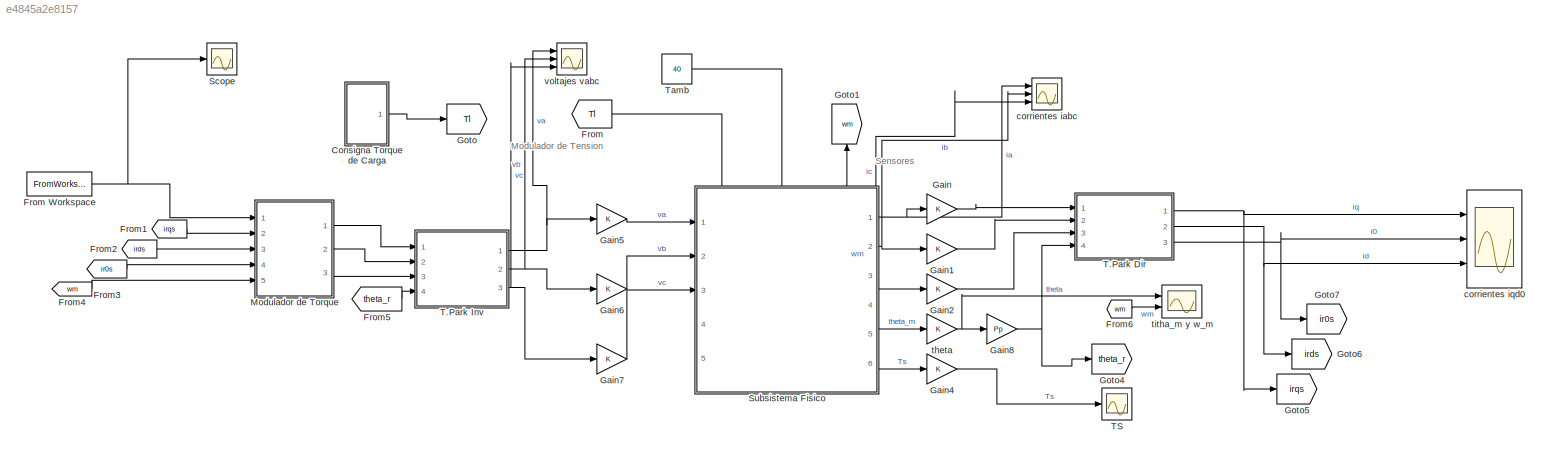
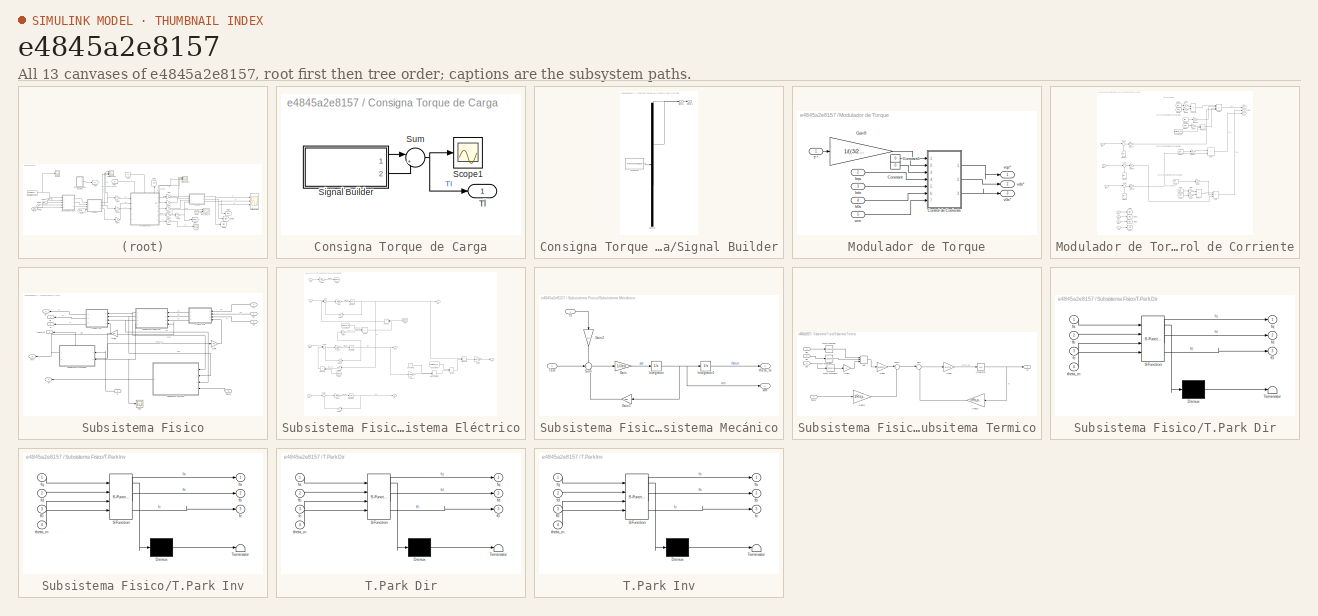
[diagram: thumbnail index - all 13 canvases of the model, root first then tree order]
MODEL slx_e4845a2e8157
KIND model
CONFIG AbsTol = auto
CONFIG EnableMultiTasking = off
CONFIG FixedStep = auto
CONFIG MaxStep = auto
CONFIG MinStep = auto
CONFIG RelTol = 1e-3
CONFIG SampleTimeConstraint = Unconstrained
CONFIG SolverName = VariableStepAuto
CONFIG StartTime = 0.0
CONFIG StopTime = 1.3
BLOCK [SubSystem] Consigna Torque de Carga
  Ports = [0, 1]
  RequestExecContextInheritance = off
BLOCK [Scope] Consigna Torque de Carga/Scope1
  Floating = off
  NumInputPorts = 1
  Ports = [1]
  ScopeSpecificationString = Simulink.scopes.TimeScopeBlockCfg('CurrentConfiguration', extmgr.ConfigurationSet(extmgr.Configuration('Core','General UI',true),extmgr.Configuration('Core','Source UI',true),extmgr.Configuration('Sources','WiredSimulink',true,'DataLoggingVariableName','ScopeData2'),extmgr.Configuration('Visuals','Time Domain',true,'SerializedDisplays',{struct('MinYLimReal','-7.85','MaxYLimReal','7.85','YLabelReal...<+1373ch>
BLOCK [SubSystem] Consigna Torque de Carga/Signal Builder
  ClipboardFcn = sigbuilder_block('clipboard');
  CloseFcn = sigbuilder_block('close');
  ContinueFcn = sigbuilder_block('continue');
  CopyFcn = sigbuilder_block('copy');
  DeleteFcn = sigbuilder_block('delete');
  LoadFcn = sigbuilder_block('load');
  MaskHideContents = on
  ModelCloseFcn = sigbuilder_block('modelClose');
  NameChangeFcn = sigbuilder_block('namechange');
  OpenFcn = sigbuilder_block('open',[388.2 64.2 550.8 400.2 ]);
  PauseFcn = sigbuilder_block('pause');
  Ports = [0, 2]
  PreSaveFcn = sigbuilder_block('preSave');
  RequestExecContextInheritance = off
  StartFcn = sigbuilder_block('start');
  StopFcn = sigbuilder_block('stop');
  Tag = STV Subsys
BLOCK [Demux] Consigna Torque de Carga/Signal Builder/Demux
  DisplayOption = none
  Outputs = 2
  Ports = [1, 2]
  Tag = STV Demux
BLOCK [FromWorkspace] Consigna Torque de Carga/Signal Builder/FromWs
  Tag = STV FromWs
  VariableName = tuvar
BLOCK [Outport] Consigna Torque de Carga/Signal Builder/Signal 1
  Tag = STV Outport
BLOCK [Outport] Consigna Torque de Carga/Signal Builder/Signal 2
  Port = 2
  Tag = STV Outport
BLOCK [Sum] Consigna Torque de Carga/Sum
  Inputs = |++
  Ports = [2, 1]
BLOCK [Outport] Consigna Torque de Carga/Tl
BLOCK [From] From
  GotoTag = Tl
BLOCK [FromWorkspace] From Workspace
  VariableName = out.Tem
BLOCK [From] From1
  GotoTag = irqs
BLOCK [From] From2
  GotoTag = irds
BLOCK [From] From3
  GotoTag = ir0s
BLOCK [From] From4
  GotoTag = wm
BLOCK [From] From5
  GotoTag = theta_r
BLOCK [From] From6
  GotoTag = wm
BLOCK [Gain] Gain
BLOCK [Gain] Gain1
BLOCK [Gain] Gain2
BLOCK [Gain] Gain4
BLOCK [Gain] Gain5
BLOCK [Gain] Gain6
BLOCK [Gain] Gain7
BLOCK [Gain] Gain8
  Gain = Pp
BLOCK [Goto] Goto
  GotoTag = Tl
BLOCK [Goto] Goto1
  GotoTag = wm
  NameLocation = right
BLOCK [Goto] Goto4
  GotoTag = theta_r
BLOCK [Goto] Goto5
  GotoTag = irqs
BLOCK [Goto] Goto6
  GotoTag = irds
BLOCK [Goto] Goto7
  GotoTag = ir0s
BLOCK [SubSystem] Modulador de Torque
  Ports = [5, 3]
  RequestExecContextInheritance = off
BLOCK [Constant] Modulador de Torque/Constant
  Value = 0
BLOCK [Constant] Modulador de Torque/Constant1
  Value = 0
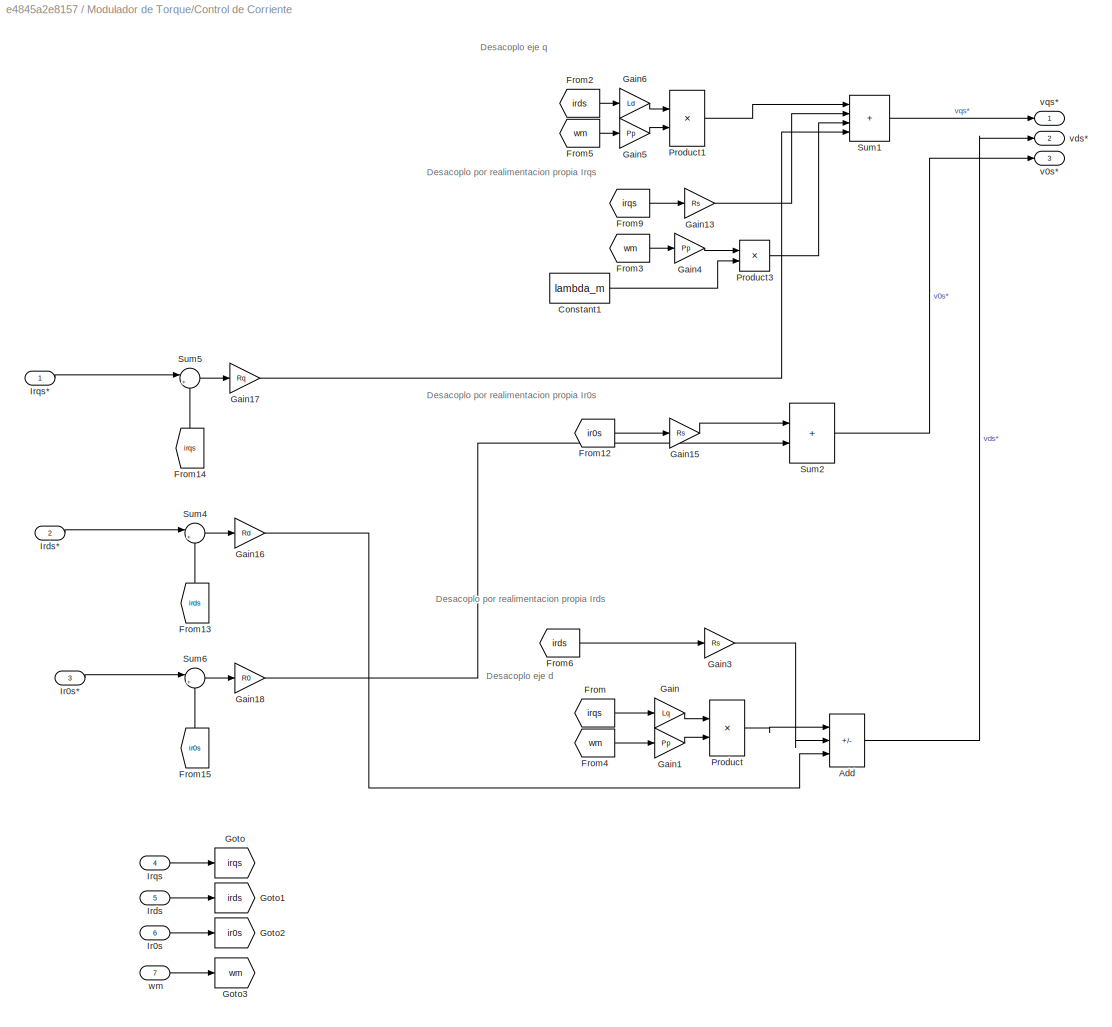
BLOCK [SubSystem] Modulador de Torque/Control de Corriente
  Ports = [7, 3]
  RequestExecContextInheritance = off
BLOCK [Sum] Modulador de Torque/Control de Corriente/Add
  IconShape = rectangular
  Inputs = |-++
  NameLocation = top
  Ports = [3, 1]
BLOCK [Constant] Modulador de Torque/Control de Corriente/Constant1
  Value = lambda_m
BLOCK [From] Modulador de Torque/Control de Corriente/From
  GotoTag = irqs
BLOCK [From] Modulador de Torque/Control de Corriente/From12
  GotoTag = ir0s
BLOCK [From] Modulador de Torque/Control de Corriente/From13
  GotoTag = irds
  NameLocation = right
BLOCK [From] Modulador de Torque/Control de Corriente/From14
  GotoTag = irqs
  NameLocation = right
BLOCK [From] Modulador de Torque/Control de Corriente/From15
  GotoTag = ir0s
  NameLocation = right
BLOCK [From] Modulador de Torque/Control de Corriente/From2
  GotoTag = irds
  NameLocation = top
BLOCK [From] Modulador de Torque/Control de Corriente/From3
  GotoTag = wm
  NameLocation = top
BLOCK [From] Modulador de Torque/Control de Corriente/From4
  GotoTag = wm
  NameLocation = top
BLOCK [From] Modulador de Torque/Control de Corriente/From5
  GotoTag = wm
  NameLocation = top
BLOCK [From] Modulador de Torque/Control de Corriente/From6
  GotoTag = irds
BLOCK [From] Modulador de Torque/Control de Corriente/From9
  GotoTag = irqs
BLOCK [Gain] Modulador de Torque/Control de Corriente/Gain
  Gain = Lq
BLOCK [Gain] Modulador de Torque/Control de Corriente/Gain1
  Gain = Pp
BLOCK [Gain] Modulador de Torque/Control de Corriente/Gain13
  Gain = Rs
BLOCK [Gain] Modulador de Torque/Control de Corriente/Gain15
  Gain = Rs
BLOCK [Gain] Modulador de Torque/Control de Corriente/Gain16
  Gain = Rd
BLOCK [Gain] Modulador de Torque/Control de Corriente/Gain17
  Gain = Rq
BLOCK [Gain] Modulador de Torque/Control de Corriente/Gain18
  Gain = R0
BLOCK [Gain] Modulador de Torque/Control de Corriente/Gain3
  Gain = Rs
BLOCK [Gain] Modulador de Torque/Control de Corriente/Gain4
  Gain = Pp
BLOCK [Gain] Modulador de Torque/Control de Corriente/Gain5
  Gain = Pp
BLOCK [Gain] Modulador de Torque/Control de Corriente/Gain6
  Gain = Ld
BLOCK [Goto] Modulador de Torque/Control de Corriente/Goto
  GotoTag = irqs
BLOCK [Goto] Modulador de Torque/Control de Corriente/Goto1
  GotoTag = irds
BLOCK [Goto] Modulador de Torque/Control de Corriente/Goto2
  GotoTag = ir0s
BLOCK [Goto] Modulador de Torque/Control de Corriente/Goto3
  GotoTag = wm
BLOCK [Inport] Modulador de Torque/Control de Corriente/Ir0s
  Port = 6
BLOCK [Inport] Modulador de Torque/Control de Corriente/Ir0s*
  Port = 3
BLOCK [Inport] Modulador de Torque/Control de Corriente/Irds
  Port = 5
BLOCK [Inport] Modulador de Torque/Control de Corriente/Irds*
  Port = 2
BLOCK [Inport] Modulador de Torque/Control de Corriente/Irqs
  Port = 4
BLOCK [Inport] Modulador de Torque/Control de Corriente/Irqs*
BLOCK [Product] Modulador de Torque/Control de Corriente/Product
  NameLocation = top
  Ports = [2, 1]
BLOCK [Product] Modulador de Torque/Control de Corriente/Product1
  NameLocation = top
  Ports = [2, 1]
BLOCK [Product] Modulador de Torque/Control de Corriente/Product3
  NameLocation = top
  Ports = [2, 1]
BLOCK [Sum] Modulador de Torque/Control de Corriente/Sum1
  IconShape = rectangular
  Inputs = |++++
  Ports = [4, 1]
BLOCK [Sum] Modulador de Torque/Control de Corriente/Sum2
  IconShape = rectangular
  Inputs = |++
  Ports = [2, 1]
BLOCK [Sum] Modulador de Torque/Control de Corriente/Sum4
  Inputs = |+-
  Ports = [2, 1]
BLOCK [Sum] Modulador de Torque/Control de Corriente/Sum5
  Inputs = |+-
  Ports = [2, 1]
BLOCK [Sum] Modulador de Torque/Control de Corriente/Sum6
  Inputs = |+-
  Ports = [2, 1]
BLOCK [Outport] Modulador de Torque/Control de Corriente/v0s*
  Port = 3
BLOCK [Outport] Modulador de Torque/Control de Corriente/vds*
  Port = 2
BLOCK [Outport] Modulador de Torque/Control de Corriente/vqs*
BLOCK [Inport] Modulador de Torque/Control de Corriente/wm
  Port = 7
BLOCK [Gain] Modulador de Torque/Gain9
  Gain = 1/((3/2)*Pp*lambda_m)
BLOCK [Inport] Modulador de Torque/Ir0s
  Port = 4
BLOCK [Inport] Modulador de Torque/Irds
  Port = 3
BLOCK [Inport] Modulador de Torque/Irqs
  Port = 2
BLOCK [Inport] Modulador de Torque/T*
BLOCK [Outport] Modulador de Torque/v0s*
  Port = 3
BLOCK [Outport] Modulador de Torque/vds*
  Port = 2
BLOCK [Outport] Modulador de Torque/vqs*
BLOCK [Inport] Modulador de Torque/wm
  Port = 5
BLOCK [Scope] Scope
  Floating = off
  NumInputPorts = 1
  Ports = [1]
  ScopeSpecificationString = Simulink.scopes.TimeScopeBlockCfg('CurrentConfiguration', extmgr.ConfigurationSet(extmgr.Configuration('Core','General UI',true),extmgr.Configuration('Core','Source UI',true),extmgr.Configuration('Sources','WiredSimulink',true,'DataLoggingVariableName','ScopeData1'),extmgr.Configuration('Visuals','Time Domain',true,'SerializedDisplays',{struct('MinYLimReal','-1.39206','MaxYLimReal','1.38011','YLab...<+1373ch>
BLOCK [SubSystem] Subsistema Fisico
  PortSchema = {"entries":[{"content":{"sides":[{"content":{"connectorIds":["In1","In2","In3"]},"type":"ConnectorPlacement.EquallySpacedRectSide","uuid":"428e53fe-c6d6-4999-95eb-db171c1d7752"},{"content":{"connectorIds":["Out1","Out2","Out3","Out4","Out5"],"side":"RIGHT"},"type":"ConnectorPlacement.EquallySpacedRectSide","uuid":"d3984cce-d898-4b9d-ab92-7967eebad5db"},{"content":{"connectorIds":["In4","In5","Out6...<+586ch>
  Ports = [5, 6]
  RequestExecContextInheritance = off
BLOCK [Gain] Subsistema Fisico/Gain
  Gain = Pp
BLOCK [Gain] Subsistema Fisico/Gain1
  Gain = Pp
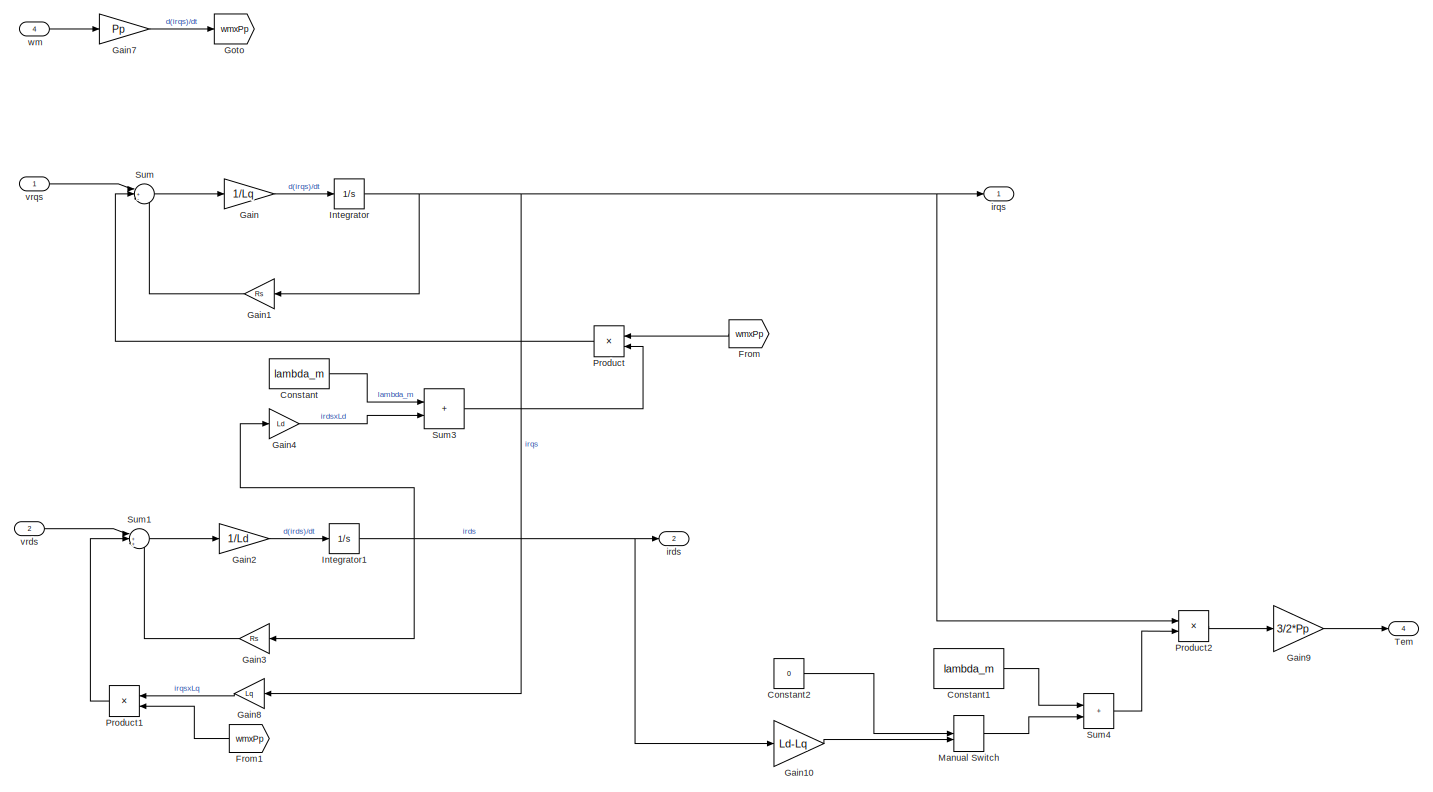
[diagram: Subsistema Fisico/Subsistema Eléctrico - part 1/2, most of the canvas]
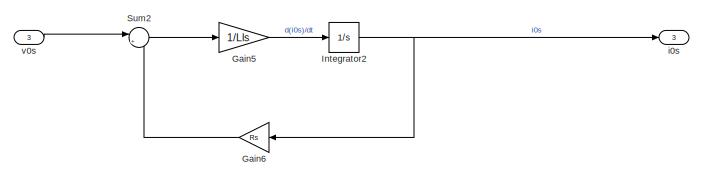
[diagram: Subsistema Fisico/Subsistema Eléctrico - part 2/2, bottom left region]
BLOCK [SubSystem] Subsistema Fisico/Subsistema Eléctrico
  Ports = [4, 4]
  RequestExecContextInheritance = off
BLOCK [Constant] Subsistema Fisico/Subsistema Eléctrico/Constant
  Value = lambda_m
BLOCK [Constant] Subsistema Fisico/Subsistema Eléctrico/Constant1
  Value = lambda_m
BLOCK [Constant] Subsistema Fisico/Subsistema Eléctrico/Constant2
  Value = 0
BLOCK [From] Subsistema Fisico/Subsistema Eléctrico/From
  GotoTag = wmxPp
BLOCK [From] Subsistema Fisico/Subsistema Eléctrico/From1
  GotoTag = wmxPp
BLOCK [Gain] Subsistema Fisico/Subsistema Eléctrico/Gain
  Gain = 1/Lq
BLOCK [Gain] Subsistema Fisico/Subsistema Eléctrico/Gain1
  Gain = Rs
BLOCK [Gain] Subsistema Fisico/Subsistema Eléctrico/Gain10
  Gain = Ld-Lq
BLOCK [Gain] Subsistema Fisico/Subsistema Eléctrico/Gain2
  Gain = 1/Ld
BLOCK [Gain] Subsistema Fisico/Subsistema Eléctrico/Gain3
  Gain = Rs
BLOCK [Gain] Subsistema Fisico/Subsistema Eléctrico/Gain4
  Gain = Ld
BLOCK [Gain] Subsistema Fisico/Subsistema Eléctrico/Gain5
  Gain = 1/Lls
BLOCK [Gain] Subsistema Fisico/Subsistema Eléctrico/Gain6
  Gain = Rs
BLOCK [Gain] Subsistema Fisico/Subsistema Eléctrico/Gain7
  Gain = Pp
BLOCK [Gain] Subsistema Fisico/Subsistema Eléctrico/Gain8
  Gain = Lq
BLOCK [Gain] Subsistema Fisico/Subsistema Eléctrico/Gain9
  Gain = 3/2*Pp
BLOCK [Goto] Subsistema Fisico/Subsistema Eléctrico/Goto
  GotoTag = wmxPp
BLOCK [Integrator] Subsistema Fisico/Subsistema Eléctrico/Integrator
  Ports = [1, 1]
BLOCK [Integrator] Subsistema Fisico/Subsistema Eléctrico/Integrator1
  Ports = [1, 1]
BLOCK [Integrator] Subsistema Fisico/Subsistema Eléctrico/Integrator2
  Ports = [1, 1]
BLOCK [ManualSwitch] Subsistema Fisico/Subsistema Eléctrico/Manual Switch
BLOCK [Product] Subsistema Fisico/Subsistema Eléctrico/Product
  Ports = [2, 1]
BLOCK [Product] Subsistema Fisico/Subsistema Eléctrico/Product1
  Ports = [2, 1]
BLOCK [Product] Subsistema Fisico/Subsistema Eléctrico/Product2
  Ports = [2, 1]
BLOCK [Sum] Subsistema Fisico/Subsistema Eléctrico/Sum
  Inputs = |+--
  Ports = [3, 1]
BLOCK [Sum] Subsistema Fisico/Subsistema Eléctrico/Sum1
  Inputs = |++-
  Ports = [3, 1]
BLOCK [Sum] Subsistema Fisico/Subsistema Eléctrico/Sum2
  Inputs = |+-
  Ports = [2, 1]
BLOCK [Sum] Subsistema Fisico/Subsistema Eléctrico/Sum3
  IconShape = rectangular
  Ports = [2, 1]
BLOCK [Sum] Subsistema Fisico/Subsistema Eléctrico/Sum4
  IconShape = rectangular
  Ports = [2, 1]
BLOCK [Outport] Subsistema Fisico/Subsistema Eléctrico/Tem
  Port = 4
BLOCK [Outport] Subsistema Fisico/Subsistema Eléctrico/i0s
  Port = 3
BLOCK [Outport] Subsistema Fisico/Subsistema Eléctrico/irds
  Port = 2
BLOCK [Outport] Subsistema Fisico/Subsistema Eléctrico/irqs
BLOCK [Inport] Subsistema Fisico/Subsistema Eléctrico/v0s
  Port = 3
BLOCK [Inport] Subsistema Fisico/Subsistema Eléctrico/vrds
  Port = 2
BLOCK [Inport] Subsistema Fisico/Subsistema Eléctrico/vrqs
BLOCK [Inport] Subsistema Fisico/Subsistema Eléctrico/wm
  Port = 4
BLOCK [SubSystem] Subsistema Fisico/Subsistema Mecánico
  PortSchema = {"entries":[{"content":{"sides":[{"content":{"connectorIds":["In1","In2"]},"type":"ConnectorPlacement.EquallySpacedRectSide","uuid":"ee0e19e9-1195-452b-ab3d-8be3dd040414"},{"content":{"connectorIds":["Out1"],"side":"RIGHT"},"type":"ConnectorPlacement.EquallySpacedRectSide","uuid":"524e54e6-4967-4b42-ae12-58774e9397a0"},{"content":{"connectorIds":["Out2"],"side":"TOP"},"type":"ConnectorPlacement.Eq...<+396ch>
  Ports = [2, 2]
  RequestExecContextInheritance = off
BLOCK [Gain] Subsistema Fisico/Subsistema Mecánico/Gain
  Gain = 1/Jeq
BLOCK [Gain] Subsistema Fisico/Subsistema Mecánico/Gain1
  Gain = beq
BLOCK [Gain] Subsistema Fisico/Subsistema Mecánico/Gain2
  Gain = 1/r
  NameLocation = left
BLOCK [Integrator] Subsistema Fisico/Subsistema Mecánico/Integrator
  Ports = [1, 1]
BLOCK [Integrator] Subsistema Fisico/Subsistema Mecánico/Integrator1
  Ports = [1, 1]
BLOCK [Sum] Subsistema Fisico/Subsistema Mecánico/Sum
  Inputs = -+-
  Ports = [3, 1]
BLOCK [Inport] Subsistema Fisico/Subsistema Mecánico/Tem
  Port = 2
BLOCK [Inport] Subsistema Fisico/Subsistema Mecánico/Tl
BLOCK [Outport] Subsistema Fisico/Subsistema Mecánico/theta_m
  Port = 2
BLOCK [Outport] Subsistema Fisico/Subsistema Mecánico/wm
BLOCK [SubSystem] Subsistema Fisico/Subsitema Termico
  Ports = [4, 1]
  RequestExecContextInheritance = off
BLOCK [Sum] Subsistema Fisico/Subsitema Termico/Add
  IconShape = rectangular
  Inputs = +++
  Ports = [3, 1]
BLOCK [Gain] Subsistema Fisico/Subsitema Termico/Gain10
  Gain = 1/Rts_amb
BLOCK [Gain] Subsistema Fisico/Subsitema Termico/Gain11
  Gain = 1/Rts_amb
BLOCK [Gain] Subsistema Fisico/Subsitema Termico/Gain7
  Gain = 2
BLOCK [Gain] Subsistema Fisico/Subsitema Termico/Gain8
  Gain = 3/2*Rs
BLOCK [Gain] Subsistema Fisico/Subsitema Termico/Gain9
  Gain = 1/Cts
BLOCK [Integrator] Subsistema Fisico/Subsitema Termico/Integrator
  InitialCondition = 40
  Ports = [1, 1]
BLOCK [Math] Subsistema Fisico/Subsitema Termico/Math Function
  Operator = square
  Ports = [1, 1]
BLOCK [Math] Subsistema Fisico/Subsitema Termico/Math Function1
  Operator = square
  Ports = [1, 1]
BLOCK [Math] Subsistema Fisico/Subsitema Termico/Math Function2
  Operator = square
  Ports = [1, 1]
BLOCK [Sum] Subsistema Fisico/Subsitema Termico/Sum
  Inputs = |+-
  Ports = [2, 1]
BLOCK [Sum] Subsistema Fisico/Subsitema Termico/Sum1
  Inputs = |++
  Ports = [2, 1]
BLOCK [Inport] Subsistema Fisico/Subsitema Termico/Tamb
  Port = 4
BLOCK [Outport] Subsistema Fisico/Subsitema Termico/Ts
BLOCK [Inport] Subsistema Fisico/Subsitema Termico/i0s
  Port = 3
BLOCK [Inport] Subsistema Fisico/Subsitema Termico/ids
  Port = 2
BLOCK [Inport] Subsistema Fisico/Subsitema Termico/iqs
BLOCK [SubSystem] Subsistema Fisico/T.Park Dir
  ErrorFcn = Stateflow.Translate.translate
  PermitHierarchicalResolution = ExplicitOnly
  Ports = [4, 3]
  RequestExecContextInheritance = off
  SFBlockType = MATLAB Function
  TreatAsAtomicUnit = on
BLOCK [Demux] Subsistema Fisico/T.Park Dir/ Demux 
  Outputs = 1
  Ports = [1, 1]
BLOCK [S-Function] Subsistema Fisico/T.Park Dir/ SFunction 
  EnableBusSupport = on
  FunctionName = sf_sfun
  PortCounts = [4 4]
  Ports = [4, 4]
  SFcnIsStateOwnerBlock = off
  SFunctionDeploymentMode = off
  Tag = Stateflow S-Function 1
BLOCK [Terminator] Subsistema Fisico/T.Park Dir/ Terminator 
BLOCK [Outport] Subsistema Fisico/T.Park Dir/f0
  Port = 3
BLOCK [Inport] Subsistema Fisico/T.Park Dir/fa
BLOCK [Inport] Subsistema Fisico/T.Park Dir/fb
  Port = 2
BLOCK [Inport] Subsistema Fisico/T.Park Dir/fc
  Port = 3
BLOCK [Outport] Subsistema Fisico/T.Park Dir/fd
  Port = 2
BLOCK [Outport] Subsistema Fisico/T.Park Dir/fq
BLOCK [Inport] Subsistema Fisico/T.Park Dir/theta_m
  Port = 4
BLOCK [SubSystem] Subsistema Fisico/T.Park Inv
  ErrorFcn = Stateflow.Translate.translate
  PermitHierarchicalResolution = ExplicitOnly
  Ports = [4, 3]
  RequestExecContextInheritance = off
  SFBlockType = MATLAB Function
  TreatAsAtomicUnit = on
BLOCK [Demux] Subsistema Fisico/T.Park Inv/ Demux 
  Outputs = 1
  Ports = [1, 1]
BLOCK [S-Function] Subsistema Fisico/T.Park Inv/ SFunction 
  EnableBusSupport = on
  FunctionName = sf_sfun
  PortCounts = [4 4]
  Ports = [4, 4]
  SFcnIsStateOwnerBlock = off
  SFunctionDeploymentMode = off
  Tag = Stateflow S-Function 2
BLOCK [Terminator] Subsistema Fisico/T.Park Inv/ Terminator 
BLOCK [Inport] Subsistema Fisico/T.Park Inv/f0
  Port = 3
BLOCK [Outport] Subsistema Fisico/T.Park Inv/fa
BLOCK [Outport] Subsistema Fisico/T.Park Inv/fb
  Port = 2
BLOCK [Outport] Subsistema Fisico/T.Park Inv/fc
  Port = 3
BLOCK [Inport] Subsistema Fisico/T.Park Inv/fd
  Port = 2
BLOCK [Inport] Subsistema Fisico/T.Park Inv/fq
BLOCK [Inport] Subsistema Fisico/T.Park Inv/theta_m
  Port = 4
BLOCK [Inport] Subsistema Fisico/Tamb
  Port = 5
BLOCK [Scope] Subsistema Fisico/Tem
  Floating = off
  NumInputPorts = 1
  Ports = [1]
  ScopeSpecificationString = Simulink.scopes.TimeScopeBlockCfg('CurrentConfiguration', extmgr.ConfigurationSet(extmgr.Configuration('Core','General UI',true),extmgr.Configuration('Core','Source UI',true),extmgr.Configuration('Sources','WiredSimulink',true,'DataLoggingVariableName','ScopeData3'),extmgr.Configuration('Visuals','Time Domain',true,'SerializedDisplays',{struct('MinYLimReal','-1.29318','MaxYLimReal','1.28192','YLab...<+1410ch>
BLOCK [Inport] Subsistema Fisico/Tl
  Port = 4
BLOCK [Outport] Subsistema Fisico/Ts
  Port = 5
BLOCK [Outport] Subsistema Fisico/ia
BLOCK [Outport] Subsistema Fisico/ib
  Port = 2
BLOCK [Outport] Subsistema Fisico/ic
  Port = 3
BLOCK [Outport] Subsistema Fisico/theta_m
  Port = 4
BLOCK [Inport] Subsistema Fisico/va
BLOCK [Inport] Subsistema Fisico/vb
  Port = 2
BLOCK [Inport] Subsistema Fisico/vc
  Port = 3
BLOCK [Outport] Subsistema Fisico/wm
  Port = 6
BLOCK [SubSystem] T.Park Dir
  ErrorFcn = Stateflow.Translate.translate
  PermitHierarchicalResolution = ExplicitOnly
  Ports = [4, 3]
  RequestExecContextInheritance = off
  SFBlockType = MATLAB Function
  TreatAsAtomicUnit = on
BLOCK [Demux] T.Park Dir/ Demux 
  Outputs = 1
  Ports = [1, 1]
BLOCK [S-Function] T.Park Dir/ SFunction 
  EnableBusSupport = on
  FunctionName = sf_sfun
  PortCounts = [4 4]
  Ports = [4, 4]
  SFcnIsStateOwnerBlock = off
  SFunctionDeploymentMode = off
  Tag = Stateflow S-Function 3
BLOCK [Terminator] T.Park Dir/ Terminator 
BLOCK [Outport] T.Park Dir/f0
  Port = 3
BLOCK [Inport] T.Park Dir/fa
BLOCK [Inport] T.Park Dir/fb
  Port = 2
BLOCK [Inport] T.Park Dir/fc
  Port = 3
BLOCK [Outport] T.Park Dir/fd
  Port = 2
BLOCK [Outport] T.Park Dir/fq
BLOCK [Inport] T.Park Dir/theta_m
  Port = 4
BLOCK [SubSystem] T.Park Inv
  ErrorFcn = Stateflow.Translate.translate
  PermitHierarchicalResolution = ExplicitOnly
  Ports = [4, 3]
  RequestExecContextInheritance = off
  SFBlockType = MATLAB Function
  TreatAsAtomicUnit = on
BLOCK [Demux] T.Park Inv/ Demux 
  Outputs = 1
  Ports = [1, 1]
BLOCK [S-Function] T.Park Inv/ SFunction 
  EnableBusSupport = on
  FunctionName = sf_sfun
  PortCounts = [4 4]
  Ports = [4, 4]
  SFcnIsStateOwnerBlock = off
  SFunctionDeploymentMode = off
  Tag = Stateflow S-Function 4
BLOCK [Terminator] T.Park Inv/ Terminator 
BLOCK [Inport] T.Park Inv/f0
  Port = 3
BLOCK [Outport] T.Park Inv/fa
BLOCK [Outport] T.Park Inv/fb
  Port = 2
BLOCK [Outport] T.Park Inv/fc
  Port = 3
BLOCK [Inport] T.Park Inv/fd
  Port = 2
BLOCK [Inport] T.Park Inv/fq
BLOCK [Inport] T.Park Inv/theta_m
  Port = 4
BLOCK [Scope] TS
  Floating = off
  NumInputPorts = 1
  Ports = [1]
  ScopeSpecificationString = Simulink.scopes.TimeScopeBlockCfg('CurrentConfiguration', extmgr.ConfigurationSet(extmgr.Configuration('Core','General UI',true),extmgr.Configuration('Core','Source UI',true),extmgr.Configuration('Sources','WiredSimulink',true,'DataLoggingVariableName','ScopeData1'),extmgr.Configuration('Visuals','Time Domain',true,'SerializedDisplays',{struct('MinYLimReal','39.83849','MaxYLimReal','41.45356','YLa...<+1367ch>
BLOCK [Constant] Tamb
  Value = 40
BLOCK [Scope] corrientes  iabc
  Floating = off
  NumInputPorts = 3
  Ports = [3]
  ScopeSpecificationString = Simulink.scopes.TimeScopeBlockCfg('CurrentConfiguration', extmgr.ConfigurationSet(extmgr.Configuration('Core','General UI',true),extmgr.Configuration('Core','Source UI',true),extmgr.Configuration('Sources','WiredSimulink',true,'DataLoggingVariableName','ScopeData2'),extmgr.Configuration('Visuals','Time Domain',true,'SerializedDisplays',{struct('MinYLimReal','-15.21092','MaxYLimReal','18.18939','YL...<+1495ch>
BLOCK [Scope] corrientes iqd0
  Floating = off
  NumInputPorts = 3
  Ports = [3]
  ScopeSpecificationString = Simulink.scopes.TimeScopeBlockCfg('CurrentConfiguration', extmgr.ConfigurationSet(extmgr.Configuration('Core','General UI',true,'FigureColor',[1 1 1],'DisplayFullSourceName',true),extmgr.Configuration('Core','Source UI',true),extmgr.Configuration('Sources','WiredSimulink',true,'DataLoggingVariableName','ScopeData3'),extmgr.Configuration('Visuals','Time Domain',true,'SerializedDisplays',{struct('Mi...<+2858ch>
BLOCK [Gain] theta
BLOCK [Scope] titha_m y w_m
  Floating = off
  NumInputPorts = 2
  Ports = [2]
  ScopeSpecificationString = Simulink.scopes.TimeScopeBlockCfg('CurrentConfiguration', extmgr.ConfigurationSet(extmgr.Configuration('Core','General UI',true),extmgr.Configuration('Core','Source UI',true),extmgr.Configuration('Sources','WiredSimulink',true,'DataLoggingVariableName','ScopeData4'),extmgr.Configuration('Visuals','Time Domain',true,'SerializedDisplays',{struct('MinYLimReal','-42.11029','MaxYLimReal','378.99261','Y...<+2036ch>
BLOCK [Scope] voltajes vabc
  Floating = off
  NumInputPorts = 3
  Ports = [3]
  ScopeSpecificationString = Simulink.scopes.TimeScopeBlockCfg('CurrentConfiguration', extmgr.ConfigurationSet(extmgr.Configuration('Core','General UI',true),extmgr.Configuration('Core','Source UI',true),extmgr.Configuration('Sources','WiredSimulink',true,'DataLoggingVariableName','ScopeData5'),extmgr.Configuration('Visuals','Time Domain',true,'SerializedDisplays',{struct('MinYLimReal','-55.16368','MaxYLimReal','57.28497','YL...<+1495ch>
ANNOTATION (root): Modulador de Tension
ANNOTATION (root): Sensores
ANNOTATION Modulador de Torque/Control de Corriente: Desacoplo eje d
ANNOTATION Modulador de Torque/Control de Corriente: Desacoplo eje q
ANNOTATION Modulador de Torque/Control de Corriente: Desacoplo por realimentacion propia Ir0s
ANNOTATION Modulador de Torque/Control de Corriente: Desacoplo por realimentacion propia Irds
ANNOTATION Modulador de Torque/Control de Corriente: Desacoplo por realimentacion propia Irqs
LINE Consigna Torque de Carga/Signal Builder:1 -> Consigna Torque de Carga/Sum:1
LINE Consigna Torque de Carga/Signal Builder:2 -> Consigna Torque de Carga/Sum:2
NET Consigna Torque de Carga/Sum:1 -> Consigna Torque de Carga/Scope1:1, Consigna Torque de Carga/Tl:1
LINE Consigna Torque de Carga:1 -> Goto:1
NET From Workspace:1 -> Modulador de Torque:1, Scope:1
LINE From1:1 -> Modulador de Torque:2
LINE From2:1 -> Modulador de Torque:3
LINE From3:1 -> Modulador de Torque:4
LINE From4:1 -> Modulador de Torque:5
LINE From5:1 -> T.Park Inv:4
LINE From6:1 -> titha_m y w_m:2
LINE From:1 -> Subsistema Fisico:4
LINE Gain1:1 -> T.Park Dir:2
LINE Gain2:1 -> T.Park Dir:3
LINE Gain4:1 -> TS:1
LINE Gain5:1 -> Subsistema Fisico:1
LINE Gain6:1 -> Subsistema Fisico:2
LINE Gain7:1 -> Subsistema Fisico:3
NET Gain8:1 -> Goto4:1, T.Park Dir:4
LINE Gain:1 -> T.Park Dir:1
LINE Modulador de Torque/Constant1:1 -> Modulador de Torque/Control de Corriente:2
LINE Modulador de Torque/Constant:1 -> Modulador de Torque/Control de Corriente:3
LINE Modulador de Torque/Control de Corriente/Add:1 -> Modulador de Torque/Control de Corriente/vds*:1
LINE Modulador de Torque/Control de Corriente/Constant1:1 -> Modulador de Torque/Control de Corriente/Product3:2
LINE Modulador de Torque/Control de Corriente/From12:1 -> Modulador de Torque/Control de Corriente/Gain15:1
LINE Modulador de Torque/Control de Corriente/From13:1 -> Modulador de Torque/Control de Corriente/Sum4:2
LINE Modulador de Torque/Control de Corriente/From14:1 -> Modulador de Torque/Control de Corriente/Sum5:2
LINE Modulador de Torque/Control de Corriente/From15:1 -> Modulador de Torque/Control de Corriente/Sum6:2
LINE Modulador de Torque/Control de Corriente/From2:1 -> Modulador de Torque/Control de Corriente/Gain6:1
LINE Modulador de Torque/Control de Corriente/From3:1 -> Modulador de Torque/Control de Corriente/Gain4:1
LINE Modulador de Torque/Control de Corriente/From4:1 -> Modulador de Torque/Control de Corriente/Gain1:1
LINE Modulador de Torque/Control de Corriente/From5:1 -> Modulador de Torque/Control de Corriente/Gain5:1
LINE Modulador de Torque/Control de Corriente/From6:1 -> Modulador de Torque/Control de Corriente/Gain3:1
LINE Modulador de Torque/Control de Corriente/From9:1 -> Modulador de Torque/Control de Corriente/Gain13:1
LINE Modulador de Torque/Control de Corriente/From:1 -> Modulador de Torque/Control de Corriente/Gain:1
LINE Modulador de Torque/Control de Corriente/Gain13:1 -> Modulador de Torque/Control de Corriente/Sum1:2
LINE Modulador de Torque/Control de Corriente/Gain15:1 -> Modulador de Torque/Control de Corriente/Sum2:1
LINE Modulador de Torque/Control de Corriente/Gain16:1 -> Modulador de Torque/Control de Corriente/Add:3
LINE Modulador de Torque/Control de Corriente/Gain17:1 -> Modulador de Torque/Control de Corriente/Sum1:4
LINE Modulador de Torque/Control de Corriente/Gain18:1 -> Modulador de Torque/Control de Corriente/Sum2:2
LINE Modulador de Torque/Control de Corriente/Gain1:1 -> Modulador de Torque/Control de Corriente/Product:2
LINE Modulador de Torque/Control de Corriente/Gain3:1 -> Modulador de Torque/Control de Corriente/Add:2
LINE Modulador de Torque/Control de Corriente/Gain4:1 -> Modulador de Torque/Control de Corriente/Product3:1
LINE Modulador de Torque/Control de Corriente/Gain5:1 -> Modulador de Torque/Control de Corriente/Product1:2
LINE Modulador de Torque/Control de Corriente/Gain6:1 -> Modulador de Torque/Control de Corriente/Product1:1
LINE Modulador de Torque/Control de Corriente/Gain:1 -> Modulador de Torque/Control de Corriente/Product:1
LINE Modulador de Torque/Control de Corriente/Ir0s*:1 -> Modulador de Torque/Control de Corriente/Sum6:1
LINE Modulador de Torque/Control de Corriente/Ir0s:1 -> Modulador de Torque/Control de Corriente/Goto2:1
LINE Modulador de Torque/Control de Corriente/Irds*:1 -> Modulador de Torque/Control de Corriente/Sum4:1
LINE Modulador de Torque/Control de Corriente/Irds:1 -> Modulador de Torque/Control de Corriente/Goto1:1
LINE Modulador de Torque/Control de Corriente/Irqs*:1 -> Modulador de Torque/Control de Corriente/Sum5:1
LINE Modulador de Torque/Control de Corriente/Irqs:1 -> Modulador de Torque/Control de Corriente/Goto:1
LINE Modulador de Torque/Control de Corriente/Product1:1 -> Modulador de Torque/Control de Corriente/Sum1:1
LINE Modulador de Torque/Control de Corriente/Product3:1 -> Modulador de Torque/Control de Corriente/Sum1:3
LINE Modulador de Torque/Control de Corriente/Product:1 -> Modulador de Torque/Control de Corriente/Add:1
LINE Modulador de Torque/Control de Corriente/Sum1:1 -> Modulador de Torque/Control de Corriente/vqs*:1
LINE Modulador de Torque/Control de Corriente/Sum2:1 -> Modulador de Torque/Control de Corriente/v0s*:1
LINE Modulador de Torque/Control de Corriente/Sum4:1 -> Modulador de Torque/Control de Corriente/Gain16:1
LINE Modulador de Torque/Control de Corriente/Sum5:1 -> Modulador de Torque/Control de Corriente/Gain17:1
LINE Modulador de Torque/Control de Corriente/Sum6:1 -> Modulador de Torque/Control de Corriente/Gain18:1
LINE Modulador de Torque/Control de Corriente/wm:1 -> Modulador de Torque/Control de Corriente/Goto3:1
LINE Modulador de Torque/Control de Corriente:1 -> Modulador de Torque/vqs*:1
LINE Modulador de Torque/Control de Corriente:2 -> Modulador de Torque/vds*:1
LINE Modulador de Torque/Control de Corriente:3 -> Modulador de Torque/v0s*:1
LINE Modulador de Torque/Gain9:1 -> Modulador de Torque/Control de Corriente:1
LINE Modulador de Torque/Ir0s:1 -> Modulador de Torque/Control de Corriente:6
LINE Modulador de Torque/Irds:1 -> Modulador de Torque/Control de Corriente:5
LINE Modulador de Torque/Irqs:1 -> Modulador de Torque/Control de Corriente:4
LINE Modulador de Torque/T*:1 -> Modulador de Torque/Gain9:1
LINE Modulador de Torque/wm:1 -> Modulador de Torque/Control de Corriente:7
LINE Modulador de Torque:1 -> T.Park Inv:1
LINE Modulador de Torque:2 -> T.Park Inv:2
LINE Modulador de Torque:3 -> T.Park Inv:3
LINE Subsistema Fisico/Gain1:1 -> Subsistema Fisico/T.Park Inv:4
LINE Subsistema Fisico/Gain:1 -> Subsistema Fisico/T.Park Dir:4
LINE Subsistema Fisico/Subsistema Eléctrico/Constant1:1 -> Subsistema Fisico/Subsistema Eléctrico/Sum4:1
LINE Subsistema Fisico/Subsistema Eléctrico/Constant2:1 -> Subsistema Fisico/Subsistema Eléctrico/Manual Switch:1
LINE Subsistema Fisico/Subsistema Eléctrico/Constant:1 -> Subsistema Fisico/Subsistema Eléctrico/Sum3:1
LINE Subsistema Fisico/Subsistema Eléctrico/From1:1 -> Subsistema Fisico/Subsistema Eléctrico/Product1:2
LINE Subsistema Fisico/Subsistema Eléctrico/From:1 -> Subsistema Fisico/Subsistema Eléctrico/Product:1
LINE Subsistema Fisico/Subsistema Eléctrico/Gain10:1 -> Subsistema Fisico/Subsistema Eléctrico/Manual Switch:2
LINE Subsistema Fisico/Subsistema Eléctrico/Gain1:1 -> Subsistema Fisico/Subsistema Eléctrico/Sum:3
LINE Subsistema Fisico/Subsistema Eléctrico/Gain2:1 -> Subsistema Fisico/Subsistema Eléctrico/Integrator1:1
LINE Subsistema Fisico/Subsistema Eléctrico/Gain3:1 -> Subsistema Fisico/Subsistema Eléctrico/Sum1:3
LINE Subsistema Fisico/Subsistema Eléctrico/Gain4:1 -> Subsistema Fisico/Subsistema Eléctrico/Sum3:2
LINE Subsistema Fisico/Subsistema Eléctrico/Gain5:1 -> Subsistema Fisico/Subsistema Eléctrico/Integrator2:1
LINE Subsistema Fisico/Subsistema Eléctrico/Gain6:1 -> Subsistema Fisico/Subsistema Eléctrico/Sum2:2
LINE Subsistema Fisico/Subsistema Eléctrico/Gain7:1 -> Subsistema Fisico/Subsistema Eléctrico/Goto:1
LINE Subsistema Fisico/Subsistema Eléctrico/Gain8:1 -> Subsistema Fisico/Subsistema Eléctrico/Product1:1
LINE Subsistema Fisico/Subsistema Eléctrico/Gain9:1 -> Subsistema Fisico/Subsistema Eléctrico/Tem:1
LINE Subsistema Fisico/Subsistema Eléctrico/Gain:1 -> Subsistema Fisico/Subsistema Eléctrico/Integrator:1
NET Subsistema Fisico/Subsistema Eléctrico/Integrator1:1 -> Subsistema Fisico/Subsistema Eléctrico/Gain10:1, Subsistema Fisico/Subsistema Eléctrico/Gain3:1, Subsistema Fisico/Subsistema Eléctrico/Gain4:1, Subsistema Fisico/Subsistema Eléctrico/irds:1
NET Subsistema Fisico/Subsistema Eléctrico/Integrator2:1 -> Subsistema Fisico/Subsistema Eléctrico/Gain6:1, Subsistema Fisico/Subsistema Eléctrico/i0s:1
NET Subsistema Fisico/Subsistema Eléctrico/Integrator:1 -> Subsistema Fisico/Subsistema Eléctrico/Gain1:1, Subsistema Fisico/Subsistema Eléctrico/Gain8:1, Subsistema Fisico/Subsistema Eléctrico/Product2:1, Subsistema Fisico/Subsistema Eléctrico/irqs:1
LINE Subsistema Fisico/Subsistema Eléctrico/Manual Switch:1 -> Subsistema Fisico/Subsistema Eléctrico/Sum4:2
LINE Subsistema Fisico/Subsistema Eléctrico/Product1:1 -> Subsistema Fisico/Subsistema Eléctrico/Sum1:2
LINE Subsistema Fisico/Subsistema Eléctrico/Product2:1 -> Subsistema Fisico/Subsistema Eléctrico/Gain9:1
LINE Subsistema Fisico/Subsistema Eléctrico/Product:1 -> Subsistema Fisico/Subsistema Eléctrico/Sum:2
LINE Subsistema Fisico/Subsistema Eléctrico/Sum1:1 -> Subsistema Fisico/Subsistema Eléctrico/Gain2:1
LINE Subsistema Fisico/Subsistema Eléctrico/Sum2:1 -> Subsistema Fisico/Subsistema Eléctrico/Gain5:1
LINE Subsistema Fisico/Subsistema Eléctrico/Sum3:1 -> Subsistema Fisico/Subsistema Eléctrico/Product:2
LINE Subsistema Fisico/Subsistema Eléctrico/Sum4:1 -> Subsistema Fisico/Subsistema Eléctrico/Product2:2
LINE Subsistema Fisico/Subsistema Eléctrico/Sum:1 -> Subsistema Fisico/Subsistema Eléctrico/Gain:1
LINE Subsistema Fisico/Subsistema Eléctrico/v0s:1 -> Subsistema Fisico/Subsistema Eléctrico/Sum2:1
LINE Subsistema Fisico/Subsistema Eléctrico/vrds:1 -> Subsistema Fisico/Subsistema Eléctrico/Sum1:1
LINE Subsistema Fisico/Subsistema Eléctrico/vrqs:1 -> Subsistema Fisico/Subsistema Eléctrico/Sum:1
LINE Subsistema Fisico/Subsistema Eléctrico/wm:1 -> Subsistema Fisico/Subsistema Eléctrico/Gain7:1
NET Subsistema Fisico/Subsistema Eléctrico:1 -> Subsistema Fisico/Subsitema Termico:1, Subsistema Fisico/T.Park Inv:1
NET Subsistema Fisico/Subsistema Eléctrico:2 -> Subsistema Fisico/Subsitema Termico:2, Subsistema Fisico/T.Park Inv:2
NET Subsistema Fisico/Subsistema Eléctrico:3 -> Subsistema Fisico/Subsitema Termico:3, Subsistema Fisico/T.Park Inv:3
NET Subsistema Fisico/Subsistema Eléctrico:4 -> Subsistema Fisico/Subsistema Mecánico:2, Subsistema Fisico/Tem:1
LINE Subsistema Fisico/Subsistema Mecánico/Gain1:1 -> Subsistema Fisico/Subsistema Mecánico/Sum:3
LINE Subsistema Fisico/Subsistema Mecánico/Gain2:1 -> Subsistema Fisico/Subsistema Mecánico/Sum:1
LINE Subsistema Fisico/Subsistema Mecánico/Gain:1 -> Subsistema Fisico/Subsistema Mecánico/Integrator:1
LINE Subsistema Fisico/Subsistema Mecánico/Integrator1:1 -> Subsistema Fisico/Subsistema Mecánico/theta_m:1
NET Subsistema Fisico/Subsistema Mecánico/Integrator:1 -> Subsistema Fisico/Subsistema Mecánico/Gain1:1, Subsistema Fisico/Subsistema Mecánico/Integrator1:1, Subsistema Fisico/Subsistema Mecánico/wm:1
LINE Subsistema Fisico/Subsistema Mecánico/Sum:1 -> Subsistema Fisico/Subsistema Mecánico/Gain:1
LINE Subsistema Fisico/Subsistema Mecánico/Tem:1 -> Subsistema Fisico/Subsistema Mecánico/Sum:2
LINE Subsistema Fisico/Subsistema Mecánico/Tl:1 -> Subsistema Fisico/Subsistema Mecánico/Gain2:1
NET Subsistema Fisico/Subsistema Mecánico:1 -> Subsistema Fisico/Subsistema Eléctrico:4, Subsistema Fisico/wm:1
NET Subsistema Fisico/Subsistema Mecánico:2 -> Subsistema Fisico/Gain1:1, Subsistema Fisico/Gain:1, Subsistema Fisico/theta_m:1
LINE Subsistema Fisico/Subsitema Termico/Add:1 -> Subsistema Fisico/Subsitema Termico/Gain8:1
LINE Subsistema Fisico/Subsitema Termico/Gain10:1 -> Subsistema Fisico/Subsitema Termico/Sum:2
LINE Subsistema Fisico/Subsitema Termico/Gain11:1 -> Subsistema Fisico/Subsitema Termico/Sum1:2
LINE Subsistema Fisico/Subsitema Termico/Gain7:1 -> Subsistema Fisico/Subsitema Termico/Add:3
LINE Subsistema Fisico/Subsitema Termico/Gain8:1 -> Subsistema Fisico/Subsitema Termico/Sum1:1
LINE Subsistema Fisico/Subsitema Termico/Gain9:1 -> Subsistema Fisico/Subsitema Termico/Integrator:1
NET Subsistema Fisico/Subsitema Termico/Integrator:1 -> Subsistema Fisico/Subsitema Termico/Gain10:1, Subsistema Fisico/Subsitema Termico/Ts:1
LINE Subsistema Fisico/Subsitema Termico/Math Function1:1 -> Subsistema Fisico/Subsitema Termico/Add:2
LINE Subsistema Fisico/Subsitema Termico/Math Function2:1 -> Subsistema Fisico/Subsitema Termico/Gain7:1
LINE Subsistema Fisico/Subsitema Termico/Math Function:1 -> Subsistema Fisico/Subsitema Termico/Add:1
LINE Subsistema Fisico/Subsitema Termico/Sum1:1 -> Subsistema Fisico/Subsitema Termico/Sum:1
LINE Subsistema Fisico/Subsitema Termico/Sum:1 -> Subsistema Fisico/Subsitema Termico/Gain9:1
LINE Subsistema Fisico/Subsitema Termico/Tamb:1 -> Subsistema Fisico/Subsitema Termico/Gain11:1
LINE Subsistema Fisico/Subsitema Termico/i0s:1 -> Subsistema Fisico/Subsitema Termico/Math Function2:1
LINE Subsistema Fisico/Subsitema Termico/ids:1 -> Subsistema Fisico/Subsitema Termico/Math Function1:1
LINE Subsistema Fisico/Subsitema Termico/iqs:1 -> Subsistema Fisico/Subsitema Termico/Math Function:1
LINE Subsistema Fisico/Subsitema Termico:1 -> Subsistema Fisico/Ts:1
LINE Subsistema Fisico/T.Park Dir:1 -> Subsistema Fisico/Subsistema Eléctrico:1
LINE Subsistema Fisico/T.Park Dir:2 -> Subsistema Fisico/Subsistema Eléctrico:2
LINE Subsistema Fisico/T.Park Dir:3 -> Subsistema Fisico/Subsistema Eléctrico:3
LINE Subsistema Fisico/T.Park Inv:1 -> Subsistema Fisico/ia:1
LINE Subsistema Fisico/T.Park Inv:2 -> Subsistema Fisico/ib:1
LINE Subsistema Fisico/T.Park Inv:3 -> Subsistema Fisico/ic:1
LINE Subsistema Fisico/Tamb:1 -> Subsistema Fisico/Subsitema Termico:4
LINE Subsistema Fisico/Tl:1 -> Subsistema Fisico/Subsistema Mecánico:1
LINE Subsistema Fisico/va:1 -> Subsistema Fisico/T.Park Dir:1
LINE Subsistema Fisico/vb:1 -> Subsistema Fisico/T.Park Dir:2
LINE Subsistema Fisico/vc:1 -> Subsistema Fisico/T.Park Dir:3
NET Subsistema Fisico:1 -> Gain:1, corrientes  iabc:1
NET Subsistema Fisico:2 -> Gain1:1, corrientes  iabc:2
NET Subsistema Fisico:3 -> Gain2:1, corrientes  iabc:3
LINE Subsistema Fisico:4 -> theta:1
LINE Subsistema Fisico:5 -> Gain4:1
LINE Subsistema Fisico:6 -> Goto1:1
NET T.Park Dir:1 -> Goto5:1, corrientes iqd0:1
NET T.Park Dir:2 -> Goto6:1, corrientes iqd0:3
NET T.Park Dir:3 -> Goto7:1, corrientes iqd0:2
NET T.Park Inv:1 -> Gain5:1, voltajes vabc:1
NET T.Park Inv:2 -> Gain6:1, voltajes vabc:2
NET T.Park Inv:3 -> Gain7:1, voltajes vabc:3
LINE Tamb:1 -> Subsistema Fisico:5
NET theta:1 -> Gain8:1, titha_m y w_m:1
note: NET lines group one-source signal fan-out (src -> all destinations, sorted); 1:1 wires keep LINE
CHART Subsistema Fisico/T.Park Dir states=1 transitions=1
  STATE_LABEL 'eML_blk_kernel()'
  STATE_LABEL 'SCRIPT:\nfunction [fq,fd,f0] = fcn(fa,fb,fc,theta_m)\nfq=2/3*(cos(theta_m)*fa+cos(theta_m-(2*pi/(3)))*fb+cos(theta_m+(2*pi/(3)))*fc);\nfd=2/3*(sin(theta_m)*fa+sin(theta_m-(2*pi/(3)))*fb+sin(theta_m+(2*pi/(3)))*fc);\nf0=2/3*((1/2)*fa+(1/2)*fb+(1/2)*fc);\n\n'
CHART Subsistema Fisico/T.Park Inv states=1 transitions=1
  STATE_LABEL 'eML_blk_kernel()'
  STATE_LABEL 'SCRIPT:\nfunction [fa,fb,fc] = fcn(fq,fd,f0,theta_m)\nfa=fq*cos(theta_m)+fd*sin(theta_m)+f0;\nfb=fq*cos(theta_m-(2*pi/(3)))+fd*sin(theta_m-(2*pi/(3)))+f0;\nfc=fq*cos(theta_m+(2*pi/(3)))+fd*sin(theta_m+(2*pi/(3)))+f0;\n\n'
CHART T.Park Dir states=1 transitions=1
  STATE_LABEL 'eML_blk_kernel()'
  STATE_LABEL 'SCRIPT:\nfunction [fq,fd,f0] = fcn(fa,fb,fc,theta_m)\nfq=2/3*(cos(theta_m)*fa+cos(theta_m-(2*pi/(3)))*fb+cos(theta_m+(2*pi/(3)))*fc);\nfd=2/3*(sin(theta_m)*fa+sin(theta_m-(2*pi/(3)))*fb+sin(theta_m+(2*pi/(3)))*fc);\nf0=2/3*((1/2)*fa+(1/2)*fb+(1/2)*fc);\n\n'
CHART T.Park Inv states=1 transitions=1
  STATE_LABEL 'eML_blk_kernel()'
  STATE_LABEL 'SCRIPT:\nfunction [fa,fb,fc] = fcn(fq,fd,f0,theta_m)\nfa=fq*cos(theta_m)+fd*sin(theta_m)+f0;\nfb=fq*cos(theta_m-(2*pi/(3)))+fd*sin(theta_m-(2*pi/(3)))+f0;\nfc=fq*cos(theta_m+(2*pi/(3)))+fd*sin(theta_m+(2*pi/(3)))+f0;\n\n'
CHART  states=0 transitions=0
CHART  states=0 transitions=0
CHART  states=0 transitions=0
CHART  states=0 transitions=0
